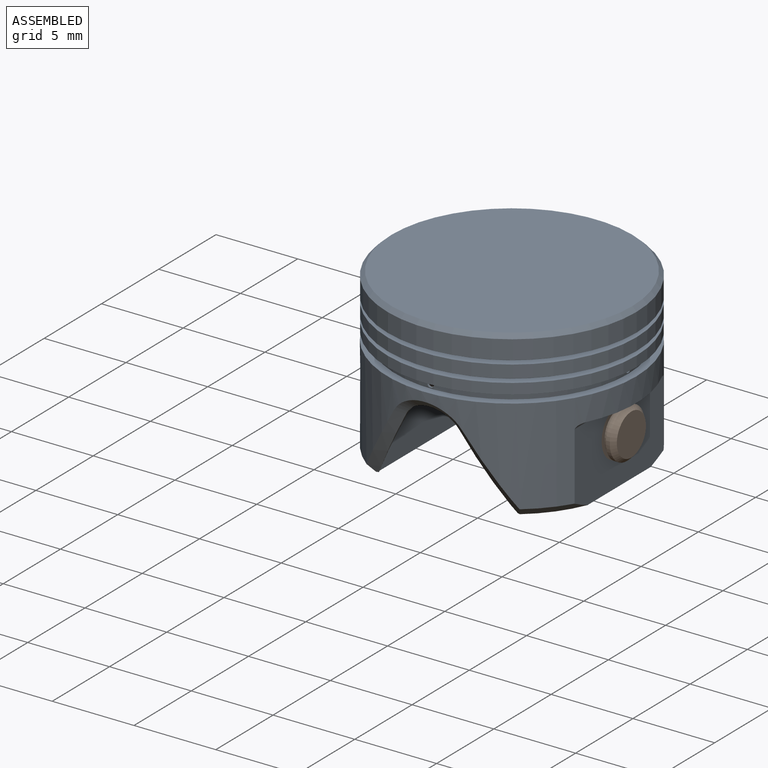
[diagram: assembled view]
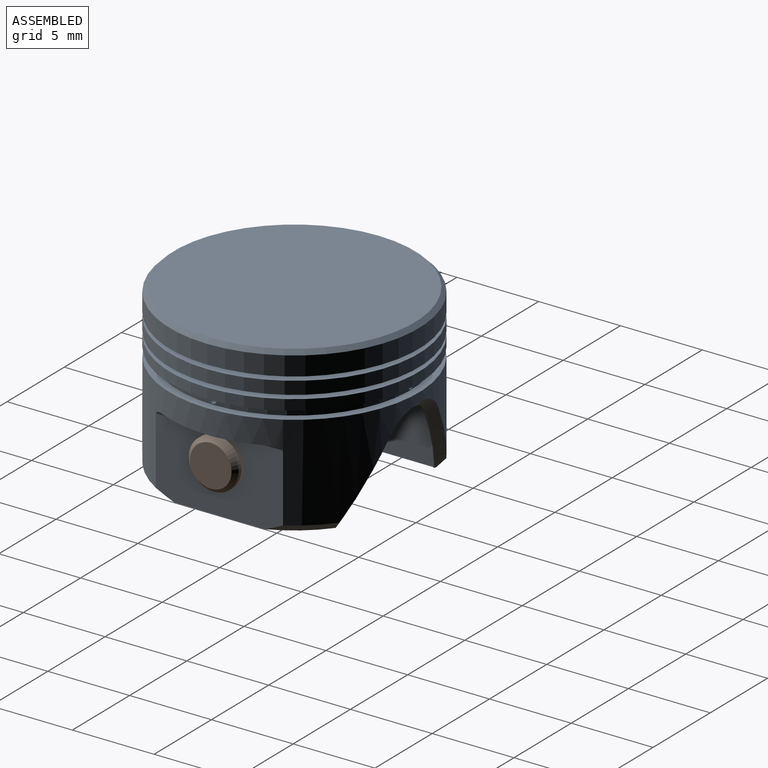
[diagram: assembled view, second angle]
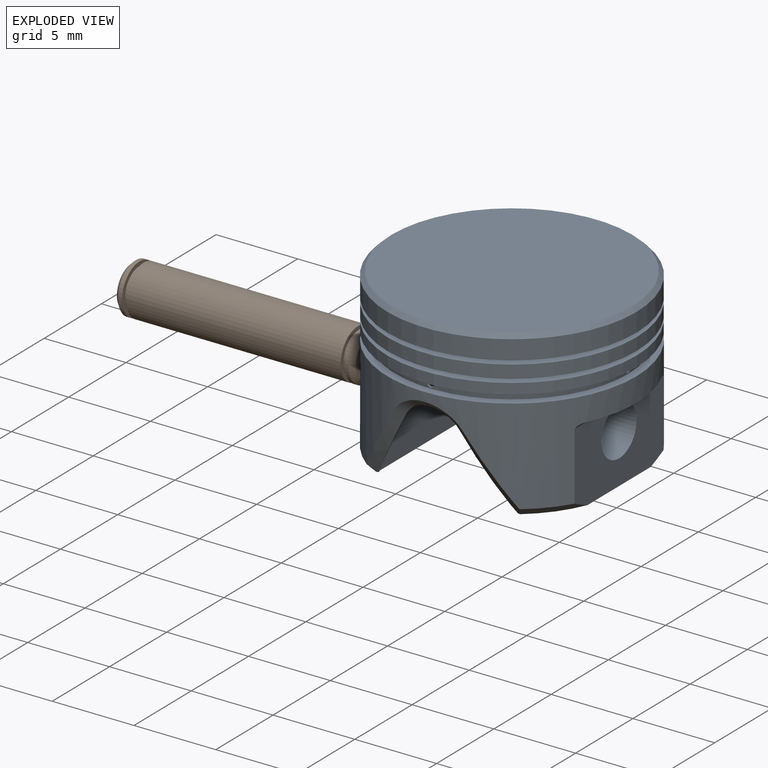
[diagram: exploded view]
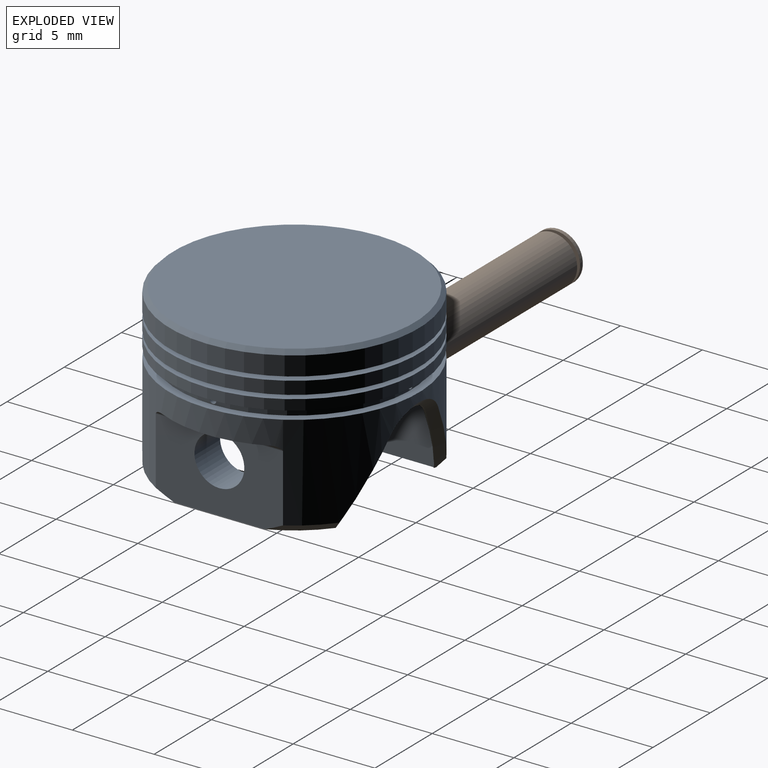
[diagram: exploded view, second angle]
ASSEMBLY  parts=2 mates=2
PART A: 50 faces, bbox 15.3x15.3x10.3 mm
  f0: plane 11.19x2.31mm, normal (0,0,-1), area 20mm2, adj f3,f4,f24,f30,f42,f43,f46,f49
  f1: plane 11.19x2.31mm, normal (0,0,-1), area 20mm2, adj f3,f4,f25,f33,f40,f41,f44,f47
  f2: cylinder r=7.62mm len=15.24mm, axis (0,0,-1), area 142.3mm2, adj f21,f28,f29,f30,f31,f32,f33,f40
  f3: cylinder r=6.99mm len=8.64mm, axis (0,0,-1), area 48.7mm2, adj f0,f1,f6,f24,f25,f26,f37,f38
  f4: cylinder r=6.99mm len=8.64mm, axis (0,0,-1), area 48.7mm2, adj f0,f1,f7,f24,f25,f26,f34,f35
  f5: cylinder r=1.52mm len=3.05mm, axis (1,0,0), area 21.4mm2, adj f24,f30
  f6: cylinder r=0.2mm len=0.41mm, axis (0,-1,0), area 0.2mm2, adj f3,f20
  f7: cylinder r=0.2mm len=0.41mm, axis (0,-1,0), area 0.2mm2, adj f4,f20
  f8: cylinder r=0.2mm len=2.79mm, axis (1,0,0), area 3.6mm2, adj f20,f25
  f9: cylinder r=7.62mm len=15.24mm, axis (0,0,-1), area 36.5mm2, adj f13,f15
  f10: cylinder r=7.62mm len=15.24mm, axis (0,0,-1), area 30.4mm2, adj f12,f22
  f11: cylinder r=7.11mm len=14.22mm, axis (0,0,1), area 11.4mm2, adj f12,f13
  f12: plane 15.24x15.24mm, normal (0,0,1), area 23.5mm2, adj f10,f11
  f13: plane 15.24x15.24mm, normal (0,0,-1), area 23.5mm2, adj f9,f11
  f14: cylinder r=7.11mm len=14.22mm, axis (0,0,1), area 11.4mm2, adj f15,f16
  f15: plane 15.24x15.24mm, normal (0,0,1), area 23.5mm2, adj f9,f14
  f16: plane 15.24x15.24mm, normal (0,0,-1), area 23.5mm2, adj f14,f19
  f17: plane 14.73x14.73mm, normal (0,0,1), area 170.5mm2, adj f18
  f18: cone r=7.37mm half-angle=45deg, axis (0,0,-1), area 16.9mm2, adj f17,f19
  f19: cylinder r=7.62mm len=15.24mm, axis (0,0,-1), area 54.7mm2, adj f16,f18
  f20: cylinder r=7.11mm len=14.22mm, axis (0,0,1), area 22.2mm2, adj f6,f7,f8,f21,f22,f23
  f21: plane 15.24x15.24mm, normal (0,0,1), area 23.5mm2, adj f2,f20
  f22: plane 15.24x15.24mm, normal (0,0,-1), area 23.5mm2, adj f10,f20
  f23: cylinder r=0.2mm len=2.79mm, axis (1,0,0), area 3.6mm2, adj f20,f24
  f24: plane 10.98x8.38mm, normal (1,0,0), area 84.6mm2, adj f0,f3,f4,f5,f23,f26
  f25: plane 10.98x8.38mm, normal (-1,0,0), area 84.6mm2, adj f1,f3,f4,f8,f26,f27
  f26: plane 13.97x8.64mm, normal (0,0,-1), area 112.4mm2, adj f3,f4,f24,f25
  f27: cylinder r=1.52mm len=3.05mm, axis (1,0,0), area 21.4mm2, adj f25,f33
  f28: cylinder r=0.35mm len=7.78mm, axis (0,-1,0), area 2.9mm2, adj f2,f29,f30
  f29: plane 6.73x0.78mm, normal (0,0,-1), area 3.6mm2, adj f2,f28
  f30: plane 7.84x4.68mm, normal (-1,0,0), area 28.1mm2, adj f0,f2,f5,f28,f42,f43
  f31: plane 6.73x0.78mm, normal (0,0,-1), area 3.6mm2, adj f2,f32
  f32: cylinder r=0.35mm len=7.78mm, axis (0,-1,0), area 2.9mm2, adj f2,f31,f33
  f33: plane 7.84x4.68mm, normal (1,0,0), area 28.1mm2, adj f1,f2,f27,f32,f40,f41
  f34: plane 4.01x2.36mm, normal (0.86,0,-0.51), area 0.3mm2, adj f4,f35,f49
  f35: cylinder r=1.87mm len=3.22mm, axis (0,-1,0), area 0.7mm2, adj f4,f34,f36,f48
  f36: plane 4.01x2.36mm, normal (-0.86,0,-0.51), area 0.3mm2, adj f4,f35,f47
  f37: plane 4.01x2.36mm, normal (-0.86,0,-0.51), area 0.3mm2, adj f3,f38,f44
  f38: cylinder r=1.87mm len=3.22mm, axis (0,-1,0), area 0.7mm2, adj f3,f37,f39,f45
  f39: plane 4.01x2.36mm, normal (0.86,0,-0.51), area 0.3mm2, adj f3,f38,f46
  f40: cone r=7.62mm half-angle=45deg, axis (0,0,1), area 2.3mm2, adj f1,f2,f33,f47
  f41: cone r=7.62mm half-angle=45deg, axis (0,0,1), area 2.3mm2, adj f1,f2,f33,f44
  f42: cone r=7.62mm half-angle=45deg, axis (0,0,1), area 2.3mm2, adj f0,f2,f30,f49
  f43: cone r=7.62mm half-angle=45deg, axis (0,0,1), area 2.3mm2, adj f0,f2,f30,f46
  f44: bspline ~4.72x3.28mm, area 3.7mm2, adj f1,f2,f3,f37,f41,f45
  f45: bspline ~4.18x1.35mm, area 2.8mm2, adj f2,f38,f44,f46
  f46: bspline ~4.72x3.28mm, area 3.7mm2, adj f0,f2,f3,f39,f43,f45
  f47: bspline ~4.72x3.28mm, area 3.7mm2, adj f1,f2,f4,f36,f40,f48
  f48: bspline ~4.18x1.35mm, area 2.8mm2, adj f2,f35,f47,f49
  f49: bspline ~4.72x3.28mm, area 3.7mm2, adj f0,f2,f4,f34,f42,f48
PART B: 13 faces, bbox 14.6x3x3 mm
  f0: cylinder r=1.52mm len=3.05mm, axis (-1,0,0), area 2.3mm2, adj f3,f11
  f1: plane 2.54x2.54mm, normal (-1,0,0), area 5.1mm2, adj f11
  f2: plane 3.05x3.05mm, normal (-1,0,0), area 2.2mm2, adj f4,f5
  f3: plane 3.05x3.05mm, normal (1,0,0), area 2.2mm2, adj f0,f4
  f4: cylinder r=1.27mm len=2.54mm, axis (-1,0,0), area 2mm2, adj f2,f3
  f5: cylinder r=1.52mm len=13.11mm, axis (-1,0,0), area 125.5mm2, adj f2,f6
  f6: plane 3.05x3.05mm, normal (1,0,0), area 2.2mm2, adj f5,f8
  f7: plane 3.05x3.05mm, normal (-1,0,0), area 2.2mm2, adj f8,f10
  f8: cylinder r=1.27mm len=2.54mm, axis (-1,0,0), area 2mm2, adj f6,f7
  f9: plane 2.54x2.54mm, normal (1,0,0), area 5.1mm2, adj f12
  f10: cylinder r=1.52mm len=3.05mm, axis (-1,0,0), area 2.3mm2, adj f7,f12
  f11: cone r=1.52mm half-angle=45deg, axis (1,0,0), area 3.2mm2, adj f0,f1
  f12: cone r=1.27mm half-angle=45deg, axis (-1,0,0), area 3.2mm2, adj f9,f10
PLACE A t=(0.61,0,-3.05)mm
PLACE B t=(0.61,0,0)mm
MATE cylindrical A.f5 <-> B.f0  axis (1,0,0) through (-5.95,0,0)mm
MATE parallel B.f0 <-> A.f30  axis (-1,0,0) through (-5.95,0,0)mm
